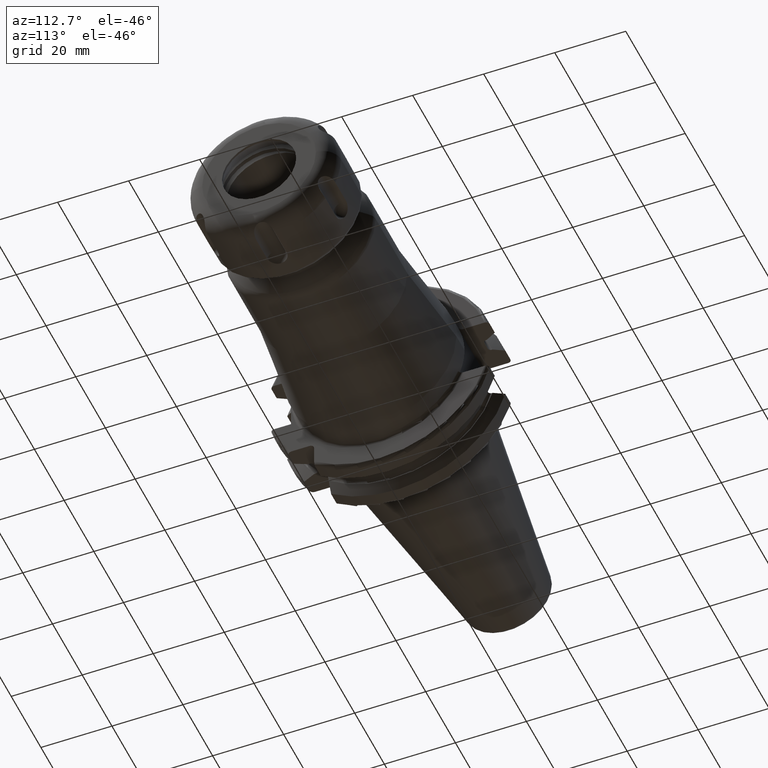
[diagram: clean part render]
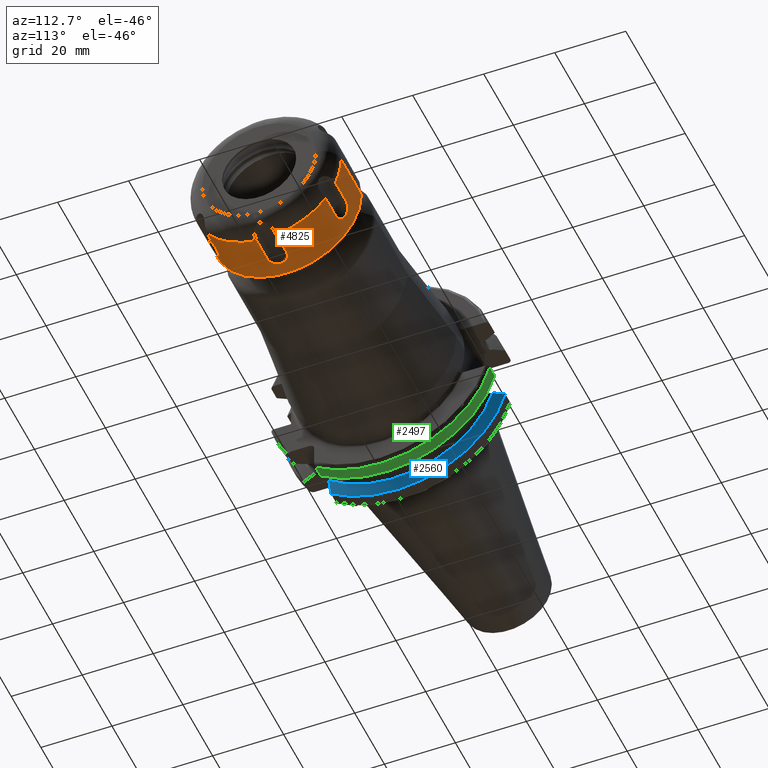
[diagram: same view with three faces highlighted in distinct colors, each labeled with its STEP entity id]
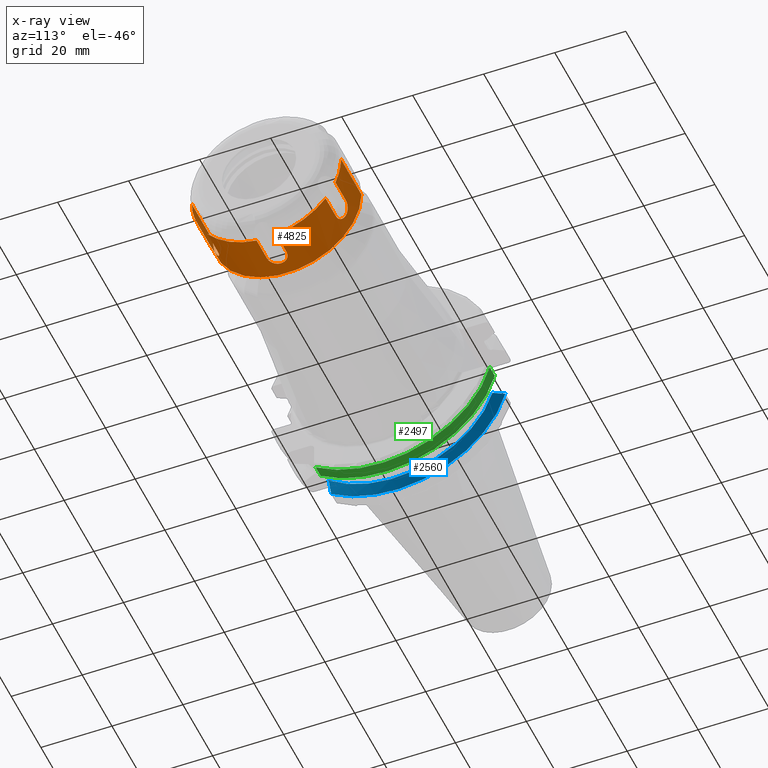
[diagram: x-ray of the same camera — body ghosted, the three highlighted faces saturated]
A machine part, auxiliary view with three faces highlighted in distinct colors.
The next image is the same camera in x-ray (body ghosted, the three faces saturated) — at least one of them is partly hidden behind the body in this view.
Their STEP definitions:

[orange] entity #4825 — the highlighted cylindrical surface (partial cylindrical patch) has radius 21 mm, axis along (-1, 0, 0).
#3443=CARTESIAN_POINT('',(1.25E0,0.E0,0.E0));
#3444=DIRECTION('',(-1.E0,0.E0,0.E0));
#3445=DIRECTION('',(0.E0,1.E0,0.E0));
#3446=AXIS2_PLACEMENT_3D('',#3443,#3444,#3445);
#3476=DIRECTION('',(-1.E0,0.E0,0.E0));
#3477=VECTOR('',#3476,1.375E1);
#3478=CARTESIAN_POINT('',(1.5E1,-2.1E1,0.E0));
#3479=LINE('',#3478,#3477);
#3480=DIRECTION('',(-1.E0,0.E0,0.E0));
#3481=VECTOR('',#3480,1.375E1);
#3482=CARTESIAN_POINT('',(1.5E1,2.1E1,0.E0));
#3483=LINE('',#3482,#3481);
#3659=DIRECTION('',(-1.E0,0.E0,0.E0));
#3660=VECTOR('',#3659,7.E0);
#3661=CARTESIAN_POINT('',(1.5E1,-1.941540806421E1,-8.002620177191E0));
#3662=LINE('',#3661,#3660);
#3663=DIRECTION('',(-1.E0,0.E0,0.E0));
#3664=VECTOR('',#3663,7.E0);
#3665=CARTESIAN_POINT('',(1.5E1,-1.663817640239E1,-1.281292651985E1));
#3666=LINE('',#3665,#3664);
#3667=CARTESIAN_POINT('',(1.5E1,0.E0,0.E0));
#3668=DIRECTION('',(-1.E0,0.E0,0.E0));
#3669=DIRECTION('',(0.E0,-1.322491267532E-1,-9.912165093828E-1));
#3670=AXIS2_PLACEMENT_3D('',#3667,#3668,#3669);
#3672=DIRECTION('',(-1.E0,0.E0,0.E0));
#3673=VECTOR('',#3672,7.E0);
#3674=CARTESIAN_POINT('',(1.5E1,-2.777231661817E0,-2.081554669704E1));
#3675=LINE('',#3674,#3673);
#3676=DIRECTION('',(-1.E0,0.E0,0.E0));
#3677=VECTOR('',#3676,7.E0);
#3678=CARTESIAN_POINT('',(1.5E1,2.777231661817E0,-2.081554669704E1));
#3679=LINE('',#3678,#3677);
#3680=CARTESIAN_POINT('',(1.5E1,0.E0,0.E0));
#3681=DIRECTION('',(-1.E0,0.E0,0.E0));
#3682=DIRECTION('',(0.E0,7.922941143994E-1,-6.101393580880E-1));
#3683=AXIS2_PLACEMENT_3D('',#3680,#3681,#3682);
#3685=DIRECTION('',(-1.E0,0.E0,0.E0));
#3686=VECTOR('',#3685,7.E0);
#3687=CARTESIAN_POINT('',(1.5E1,1.663817640239E1,-1.281292651985E1));
#3688=LINE('',#3687,#3686);
#3689=DIRECTION('',(-1.E0,0.E0,0.E0));
#3690=VECTOR('',#3689,7.E0);
#3691=CARTESIAN_POINT('',(1.5E1,1.941540806421E1,-8.002620177191E0));
#3692=LINE('',#3691,#3690);
#3693=CARTESIAN_POINT('',(1.5E1,0.E0,0.E0));
#3694=DIRECTION('',(-1.E0,0.E0,0.E0));
#3695=DIRECTION('',(0.E0,1.E0,0.E0));
#3696=AXIS2_PLACEMENT_3D('',#3693,#3694,#3695);
#3698=CARTESIAN_POINT('',(1.5E1,0.E0,0.E0));
#3699=DIRECTION('',(-1.E0,0.E0,0.E0));
#3700=DIRECTION('',(0.E0,-9.245432411526E-1,-3.810771512948E-1));
#3701=AXIS2_PLACEMENT_3D('',#3698,#3699,#3700);
#3708=CARTESIAN_POINT('',(8.E0,-1.663817640239E1,-1.281292651985E1));
#3709=CARTESIAN_POINT('',(7.714583305605E0,-1.663817640239E1,
-1.281292651985E1));
#3710=CARTESIAN_POINT('',(7.192143563434E0,-1.668830297763E1,
-1.274810774210E1));
#3711=CARTESIAN_POINT('',(6.546807345939E0,-1.685742201408E1,
-1.252453094965E1));
#3712=CARTESIAN_POINT('',(6.054802938562E0,-1.707273175939E1,
-1.222998054114E1));
#3713=CARTESIAN_POINT('',(5.693341448146E0,-1.730396217612E1,
-1.190078479590E1));
#3714=CARTESIAN_POINT('',(5.442477499872E0,-1.753199674627E1,
-1.156217247130E1));
#3715=CARTESIAN_POINT('',(5.280954622590E0,-1.774644318742E1,
-1.122995874814E1));
#3716=CARTESIAN_POINT('',(5.192134284114E0,-1.793586716112E1,
-1.092439610791E1));
#3717=CARTESIAN_POINT('',(5.152681426050E0,-1.810379712254E1,
-1.064374469399E1));
#3718=CARTESIAN_POINT('',(5.153099055368E0,-1.827316404767E1,
-1.035028364925E1));
#3719=CARTESIAN_POINT('',(5.193548204491E0,-1.843241748974E1,
-1.006398228667E1));
#3720=CARTESIAN_POINT('',(5.283274229354E0,-1.860187386136E1,
-9.747731544451E0));
#3721=CARTESIAN_POINT('',(5.445580918541E0,-1.878179790701E1,
-9.396726830567E0));
#3722=CARTESIAN_POINT('',(5.696779314112E0,-1.896026994103E1,
-9.031252239954E0));
#3723=CARTESIAN_POINT('',(6.058171132220E0,-1.912904285901E1,
-8.667751895945E0));
#3724=CARTESIAN_POINT('',(6.549574774111E0,-1.927584277882E1,
-8.335354274192E0));
#3725=CARTESIAN_POINT('',(7.193612768876E0,-1.938444317983E1,
-8.078178130094E0));
#3726=CARTESIAN_POINT('',(7.715108165173E0,-1.941540806421E1,
-8.002620177191E0));
#3727=CARTESIAN_POINT('',(8.E0,-1.941540806421E1,-8.002620177191E0));
#3752=CARTESIAN_POINT('',(8.E0,2.777231661817E0,-2.081554669704E1));
#3753=CARTESIAN_POINT('',(7.713662407976E0,2.777231661817E0,-2.081554669704E1));
#3754=CARTESIAN_POINT('',(7.189909163737E0,2.695438478365E0,-2.082662722685E1));
#3755=CARTESIAN_POINT('',(6.545266369655E0,2.416933918441E0,-2.086132910695E1));
#3756=CARTESIAN_POINT('',(6.053188385415E0,2.053714854453E0,-2.090055057382E1));
#3757=CARTESIAN_POINT('',(5.691666812557E0,1.652236150032E0,-2.093623980800E1));
#3758=CARTESIAN_POINT('',(5.440921343617E0,1.244147798999E0,-2.096442280320E1));
#3759=CARTESIAN_POINT('',(5.279713784226E0,8.485345660924E-1,
-2.098400447999E1));
#3760=CARTESIAN_POINT('',(5.191310865890E0,4.883589188883E-1,
-2.099522048576E1));
#3761=CARTESIAN_POINT('',(5.152463857373E0,1.619241904040E-1,
-2.100024895100E1));
#3762=CARTESIAN_POINT('',(5.153352970432E0,-1.769125356115E-1,
-2.100013304002E1));
#3763=CARTESIAN_POINT('',(5.194242567044E0,-5.042908363847E-1,
-2.099484367307E1));
#3764=CARTESIAN_POINT('',(5.284599976748E0,-8.631977389131E-1,
-2.098339584655E1));
#3765=CARTESIAN_POINT('',(5.447533241111E0,-1.256871962063E0,
-2.096364849057E1));
#3766=CARTESIAN_POINT('',(5.699249222549E0,-1.662072581669E0,
-2.093544078779E1));
#3767=CARTESIAN_POINT('',(6.060877722500E0,-2.060407693505E0,
-2.089987254220E1));
#3768=CARTESIAN_POINT('',(6.552100609835E0,-2.420624148758E0,
-2.086088616490E1));
#3769=CARTESIAN_POINT('',(7.194942937973E0,-2.696562424964E0,
-2.082647454950E1));
#3770=CARTESIAN_POINT('',(7.715594987669E0,-2.777231661817E0,
-2.081554669704E1));
#3771=CARTESIAN_POINT('',(8.E0,-2.777231661817E0,-2.081554669704E1));
#3796=CARTESIAN_POINT('',(8.E0,1.941540806421E1,-8.002620177191E0));
#3797=CARTESIAN_POINT('',(7.713572922658E0,1.941540806421E1,-8.002620177191E0));
#3798=CARTESIAN_POINT('',(7.189666296858E0,1.938409112840E1,-8.079036053747E0));
#3799=CARTESIAN_POINT('',(6.544777832993E0,1.927480496396E1,-8.337779258824E0));
#3800=CARTESIAN_POINT('',(6.052712802278E0,1.912708846113E1,-8.672097759418E0));
#3801=CARTESIAN_POINT('',(5.691284416322E0,1.895721237694E1,-9.037706050068E0));
#3802=CARTESIAN_POINT('',(5.440670364586E0,1.877756964477E1,-9.405200319201E0));
#3803=CARTESIAN_POINT('',(5.279587362947E0,1.859675418770E1,-9.757517579175E0));
#3804=CARTESIAN_POINT('',(5.191276123419E0,1.842646227369E1,-1.007488110629E1));
#3805=CARTESIAN_POINT('',(5.152462673233E0,1.826765771439E1,-1.035998691209E1));
#3806=CARTESIAN_POINT('',(5.153355632364E0,1.809820878830E1,-1.065324823959E1));
#3807=CARTESIAN_POINT('',(5.194221992970E0,1.792999806580E1,-1.093402505740E1));
#3808=CARTESIAN_POINT('',(5.284498191224E0,1.774073299543E1,-1.123896635518E1));
#3809=CARTESIAN_POINT('',(5.447317801761E0,1.752685369365E1,-1.156994667318E1));
#3810=CARTESIAN_POINT('',(5.698894094622E0,1.729986084275E1,-1.190671983321E1));
#3811=CARTESIAN_POINT('',(6.060385032134E0,1.706987180093E1,-1.223394697615E1));
#3812=CARTESIAN_POINT('',(6.551605632999E0,1.685591873376E1,-1.252653286965E1));
#3813=CARTESIAN_POINT('',(7.194289469945E0,1.668807982404E1,-1.274839234248E1));
#3814=CARTESIAN_POINT('',(7.715326436797E0,1.663817640239E1,-1.281292651985E1));
#3815=CARTESIAN_POINT('',(8.E0,1.663817640239E1,-1.281292651985E1));
#4428=CARTESIAN_POINT('',(1.25E0,2.1E1,0.E0));
#4430=VERTEX_POINT('',#4428);
#4433=CARTESIAN_POINT('',(1.5E1,2.1E1,0.E0));
#4435=VERTEX_POINT('',#4433);
#4436=CARTESIAN_POINT('',(1.25E0,-2.1E1,0.E0));
#4438=VERTEX_POINT('',#4436);
#4441=CARTESIAN_POINT('',(1.5E1,-2.1E1,0.E0));
#4443=VERTEX_POINT('',#4441);
#4444=CARTESIAN_POINT('',(1.5E1,-2.777231661817E0,-2.081554669704E1));
#4445=CARTESIAN_POINT('',(8.E0,-2.777231661817E0,-2.081554669704E1));
#4446=VERTEX_POINT('',#4444);
#4447=VERTEX_POINT('',#4445);
#4448=CARTESIAN_POINT('',(1.5E1,2.777231661817E0,-2.081554669704E1));
#4449=CARTESIAN_POINT('',(8.E0,2.777231661817E0,-2.081554669704E1));
#4450=VERTEX_POINT('',#4448);
#4451=VERTEX_POINT('',#4449);
#4452=CARTESIAN_POINT('',(1.5E1,1.663817640239E1,-1.281292651985E1));
#4453=CARTESIAN_POINT('',(8.E0,1.663817640239E1,-1.281292651985E1));
#4454=VERTEX_POINT('',#4452);
#4455=VERTEX_POINT('',#4453);
#4456=CARTESIAN_POINT('',(1.5E1,1.941540806421E1,-8.002620177191E0));
#4457=CARTESIAN_POINT('',(8.E0,1.941540806421E1,-8.002620177191E0));
#4458=VERTEX_POINT('',#4456);
#4459=VERTEX_POINT('',#4457);
#4484=CARTESIAN_POINT('',(1.5E1,-1.941540806421E1,-8.002620177191E0));
#4485=CARTESIAN_POINT('',(8.E0,-1.941540806421E1,-8.002620177191E0));
#4486=VERTEX_POINT('',#4484);
#4487=VERTEX_POINT('',#4485);
#4488=CARTESIAN_POINT('',(1.5E1,-1.663817640239E1,-1.281292651985E1));
#4489=CARTESIAN_POINT('',(8.E0,-1.663817640239E1,-1.281292651985E1));
#4490=VERTEX_POINT('',#4488);
#4491=VERTEX_POINT('',#4489);
#4795=CARTESIAN_POINT('',(2.1E1,0.E0,0.E0));
#4796=DIRECTION('',(-1.E0,0.E0,0.E0));
#4797=DIRECTION('',(0.E0,1.E0,0.E0));
#4798=AXIS2_PLACEMENT_3D('',#4795,#4796,#4797);
#4799=CYLINDRICAL_SURFACE('',#4798,2.1E1);
#4800=ORIENTED_EDGE('',*,*,#4790,.T.);
#4802=ORIENTED_EDGE('',*,*,#4801,.F.);
#4803=ORIENTED_EDGE('',*,*,#4786,.F.);
#4804=ORIENTED_EDGE('',*,*,#4775,.F.);
#4806=ORIENTED_EDGE('',*,*,#4805,.T.);
#4808=ORIENTED_EDGE('',*,*,#4807,.F.);
#4810=ORIENTED_EDGE('',*,*,#4809,.F.);
#4811=ORIENTED_EDGE('',*,*,#4771,.F.);
#4813=ORIENTED_EDGE('',*,*,#4812,.T.);
#4815=ORIENTED_EDGE('',*,*,#4814,.F.);
#4817=ORIENTED_EDGE('',*,*,#4816,.F.);
#4818=ORIENTED_EDGE('',*,*,#4767,.F.);
#4819=ORIENTED_EDGE('',*,*,#4648,.T.);
#4820=ORIENTED_EDGE('',*,*,#4613,.T.);
#4821=ORIENTED_EDGE('',*,*,#4645,.F.);
#4822=ORIENTED_EDGE('',*,*,#4761,.F.);
#4823=EDGE_LOOP('',(#4800,#4802,#4803,#4804,#4806,#4808,#4810,#4811,#4813,#4815,
#4817,#4818,#4819,#4820,#4821,#4822));
#4824=FACE_OUTER_BOUND('',#4823,.F.);
#4825=ADVANCED_FACE('',(#4824),#4799,.T.);
#3447=CIRCLE('',#3446,2.1E1);
#3671=CIRCLE('',#3670,2.1E1);
#3684=CIRCLE('',#3683,2.1E1);
#3697=CIRCLE('',#3696,2.1E1);
#3702=CIRCLE('',#3701,2.1E1);
#3728=B_SPLINE_CURVE_WITH_KNOTS('',3,(#3708,#3709,#3710,#3711,#3712,#3713,#3714,
#3715,#3716,#3717,#3718,#3719,#3720,#3721,#3722,#3723,#3724,#3725,#3726,#3727),
.UNSPECIFIED.,.F.,.F.,(4,1,1,1,1,1,1,1,1,1,1,1,1,1,1,1,1,4),(0.E0,
5.882352941176E-2,1.176470588235E-1,1.764705882353E-1,2.352941176471E-1,
2.941176470588E-1,3.529411764706E-1,4.117647058824E-1,4.705882352941E-1,
5.294117647059E-1,5.882352941176E-1,6.470588235294E-1,7.058823529412E-1,
7.647058823529E-1,8.235294117647E-1,8.823529411765E-1,9.411764705882E-1,1.E0),
.UNSPECIFIED.);
#3772=B_SPLINE_CURVE_WITH_KNOTS('',3,(#3752,#3753,#3754,#3755,#3756,#3757,#3758,
#3759,#3760,#3761,#3762,#3763,#3764,#3765,#3766,#3767,#3768,#3769,#3770,#3771),
.UNSPECIFIED.,.F.,.F.,(4,1,1,1,1,1,1,1,1,1,1,1,1,1,1,1,1,4),(0.E0,
5.882352941176E-2,1.176470588235E-1,1.764705882353E-1,2.352941176471E-1,
2.941176470588E-1,3.529411764706E-1,4.117647058824E-1,4.705882352941E-1,
5.294117647059E-1,5.882352941176E-1,6.470588235294E-1,7.058823529412E-1,
7.647058823529E-1,8.235294117647E-1,8.823529411765E-1,9.411764705882E-1,1.E0),
.UNSPECIFIED.);
#3816=B_SPLINE_CURVE_WITH_KNOTS('',3,(#3796,#3797,#3798,#3799,#3800,#3801,#3802,
#3803,#3804,#3805,#3806,#3807,#3808,#3809,#3810,#3811,#3812,#3813,#3814,#3815),
.UNSPECIFIED.,.F.,.F.,(4,1,1,1,1,1,1,1,1,1,1,1,1,1,1,1,1,4),(0.E0,
5.882352941176E-2,1.176470588235E-1,1.764705882353E-1,2.352941176471E-1,
2.941176470588E-1,3.529411764706E-1,4.117647058824E-1,4.705882352941E-1,
5.294117647059E-1,5.882352941176E-1,6.470588235294E-1,7.058823529412E-1,
7.647058823529E-1,8.235294117647E-1,8.823529411765E-1,9.411764705882E-1,1.E0),
.UNSPECIFIED.);
#4613=EDGE_CURVE('',#4430,#4438,#3447,.T.);
#4645=EDGE_CURVE('',#4443,#4438,#3479,.T.);
#4648=EDGE_CURVE('',#4435,#4430,#3483,.T.);
#4761=EDGE_CURVE('',#4486,#4443,#3702,.T.);
#4767=EDGE_CURVE('',#4435,#4458,#3697,.T.);
#4771=EDGE_CURVE('',#4454,#4450,#3684,.T.);
#4775=EDGE_CURVE('',#4446,#4490,#3671,.T.);
#4786=EDGE_CURVE('',#4490,#4491,#3666,.T.);
#4790=EDGE_CURVE('',#4486,#4487,#3662,.T.);
#4801=EDGE_CURVE('',#4491,#4487,#3728,.T.);
#4805=EDGE_CURVE('',#4446,#4447,#3675,.T.);
#4807=EDGE_CURVE('',#4451,#4447,#3772,.T.);
#4809=EDGE_CURVE('',#4450,#4451,#3679,.T.);
#4812=EDGE_CURVE('',#4454,#4455,#3688,.T.);
#4814=EDGE_CURVE('',#4459,#4455,#3816,.T.);
#4816=EDGE_CURVE('',#4458,#4459,#3692,.T.);

[blue] entity #2560 — the highlighted conical surface has half-angle 60 deg.
#288=CARTESIAN_POINT('',(9.2625E0,0.E0,0.E0));
#289=DIRECTION('',(-1.E0,0.E0,0.E0));
#290=DIRECTION('',(0.E0,9.600957415706E-1,-2.796715341576E-1));
#291=AXIS2_PLACEMENT_3D('',#288,#289,#290);
#642=CARTESIAN_POINT('',(7.645946479578E0,0.E0,0.E0));
#643=DIRECTION('',(1.E0,0.E0,0.E0));
#644=DIRECTION('',(0.E0,-5.777253049980E-1,-8.162312613254E-1));
#645=AXIS2_PLACEMENT_3D('',#642,#643,#644);
#750=CARTESIAN_POINT('',(9.2625E0,2.780681820245E1,-8.1E0));
#751=CARTESIAN_POINT('',(9.089138247115E0,2.811956968242E1,-8.1E0));
#752=CARTESIAN_POINT('',(8.738235514848E0,2.875178670793E1,-8.1E0));
#753=CARTESIAN_POINT('',(8.199445066245E0,2.972014324708E1,-8.1E0));
#754=CARTESIAN_POINT('',(7.831837395590E0,3.037933474515E1,-8.1E0));
#755=CARTESIAN_POINT('',(7.645946479578E0,3.071231684927E1,-8.1E0));
#757=CARTESIAN_POINT('',(9.2625E0,-1.835E1,-2.240773613162E1));
#758=CARTESIAN_POINT('',(9.097869015375E0,-1.835E1,-2.277629848758E1));
#759=CARTESIAN_POINT('',(8.758691179732E0,-1.835E1,-2.352831190146E1));
#760=CARTESIAN_POINT('',(8.220420735022E0,-1.835E1,-2.469989032362E1));
#761=CARTESIAN_POINT('',(7.840855578955E0,-1.835E1,-2.551194640168E1));
#762=CARTESIAN_POINT('',(7.645946479578E0,-1.835E1,-2.592554543785E1));
#1463=CARTESIAN_POINT('',(9.2625E0,2.780681820245E1,-8.1E0));
#1465=VERTEX_POINT('',#1463);
#1479=CARTESIAN_POINT('',(9.2625E0,-1.835E1,-2.240773613162E1));
#1481=VERTEX_POINT('',#1479);
#1523=VERTEX_POINT('',#755);
#1612=VERTEX_POINT('',#762);
#2549=CARTESIAN_POINT('',(8.454223239789E0,0.E0,0.E0));
#2550=DIRECTION('',(-1.E0,0.E0,0.E0));
#2551=DIRECTION('',(0.E0,1.E0,0.E0));
#2552=AXIS2_PLACEMENT_3D('',#2549,#2550,#2551);
#2553=CONICAL_SURFACE('',#2552,3.036252358474E1,6.E1);
#2554=ORIENTED_EDGE('',*,*,#1985,.T.);
#2555=ORIENTED_EDGE('',*,*,#2480,.F.);
#2556=ORIENTED_EDGE('',*,*,#2434,.F.);
#2557=ORIENTED_EDGE('',*,*,#2136,.F.);
#2558=EDGE_LOOP('',(#2554,#2555,#2556,#2557));
#2559=FACE_OUTER_BOUND('',#2558,.F.);
#2560=ADVANCED_FACE('',(#2559),#2553,.T.);
#292=CIRCLE('',#291,2.896254716948E1);
#646=CIRCLE('',#645,3.17625E1);
#756=B_SPLINE_CURVE_WITH_KNOTS('',3,(#750,#751,#752,#753,#754,#755),
.UNSPECIFIED.,.F.,.F.,(4,1,1,4),(0.E0,3.333333333333E-1,6.666666666667E-1,1.E0),
.UNSPECIFIED.);
#763=B_SPLINE_CURVE_WITH_KNOTS('',3,(#757,#758,#759,#760,#761,#762),
.UNSPECIFIED.,.F.,.F.,(4,1,1,4),(0.E0,3.333333333333E-1,6.666666666667E-1,1.E0),
.UNSPECIFIED.);
#1985=EDGE_CURVE('',#1465,#1523,#756,.T.);
#2136=EDGE_CURVE('',#1465,#1481,#292,.T.);
#2434=EDGE_CURVE('',#1481,#1612,#763,.T.);
#2480=EDGE_CURVE('',#1612,#1523,#646,.T.);

[green] entity #2497 — the highlighted cylindrical surface (partial cylindrical patch) has radius 31.7625 mm, axis along (1, 0, 0).
#647=DIRECTION('',(1.E0,0.E0,0.E0));
#648=VECTOR('',#647,3.345946479578E0);
#649=CARTESIAN_POINT('',(1.470405352042E1,3.071231684927E1,-8.1E0));
#650=LINE('',#649,#648);
#651=CARTESIAN_POINT('',(1.470405352042E1,0.E0,0.E0));
#652=DIRECTION('',(1.E0,0.E0,0.E0));
#653=DIRECTION('',(0.E0,-5.777253049980E-1,-8.162312613254E-1));
#654=AXIS2_PLACEMENT_3D('',#651,#652,#653);
#656=DIRECTION('',(1.E0,0.E0,0.E0));
#657=VECTOR('',#656,3.345946479578E0);
#658=CARTESIAN_POINT('',(1.470405352042E1,-1.835E1,-2.592554543785E1));
#659=LINE('',#658,#657);
#660=CARTESIAN_POINT('',(1.805E1,0.E0,0.E0));
#661=DIRECTION('',(-1.E0,0.E0,0.E0));
#662=DIRECTION('',(0.E0,9.669363825036E-1,-2.550177095632E-1));
#663=AXIS2_PLACEMENT_3D('',#660,#661,#662);
#783=CARTESIAN_POINT('',(1.470405352042E1,3.071231684927E1,-8.1E0));
#795=CARTESIAN_POINT('',(1.470405352042E1,-1.835E1,-2.592554543785E1));
#1521=VERTEX_POINT('',#783);
#1563=CARTESIAN_POINT('',(1.805E1,3.071231684927E1,-8.1E0));
#1564=VERTEX_POINT('',#1563);
#1582=CARTESIAN_POINT('',(1.805E1,-1.835E1,-2.592554543785E1));
#1583=VERTEX_POINT('',#1582);
#1611=VERTEX_POINT('',#795);
#2485=CARTESIAN_POINT('',(-7.2615E1,0.E0,0.E0));
#2486=DIRECTION('',(1.E0,0.E0,0.E0));
#2487=DIRECTION('',(0.E0,-1.E0,0.E0));
#2488=AXIS2_PLACEMENT_3D('',#2485,#2486,#2487);
#2489=CYLINDRICAL_SURFACE('',#2488,3.17625E1);
#2490=ORIENTED_EDGE('',*,*,#1999,.F.);
#2492=ORIENTED_EDGE('',*,*,#2491,.F.);
#2493=ORIENTED_EDGE('',*,*,#2422,.T.);
#2494=ORIENTED_EDGE('',*,*,#2451,.F.);
#2495=EDGE_LOOP('',(#2490,#2492,#2493,#2494));
#2496=FACE_OUTER_BOUND('',#2495,.F.);
#2497=ADVANCED_FACE('',(#2496),#2489,.T.);
#655=CIRCLE('',#654,3.17625E1);
#664=CIRCLE('',#663,3.17625E1);
#1999=EDGE_CURVE('',#1521,#1564,#650,.T.);
#2422=EDGE_CURVE('',#1611,#1583,#659,.T.);
#2451=EDGE_CURVE('',#1564,#1583,#664,.T.);
#2491=EDGE_CURVE('',#1611,#1521,#655,.T.);